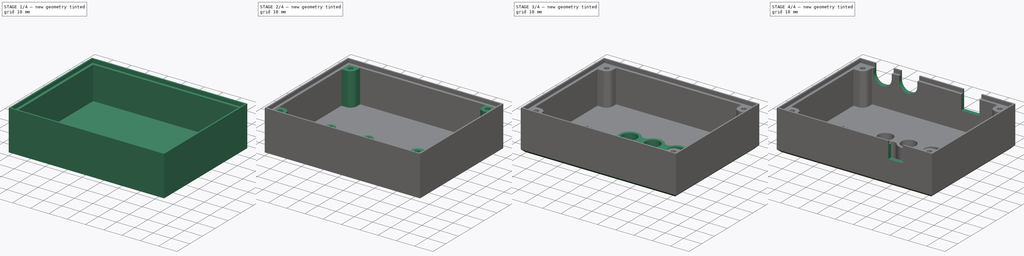
[diagram: build sequence overview — one tinted view per stage of 4, left to right]
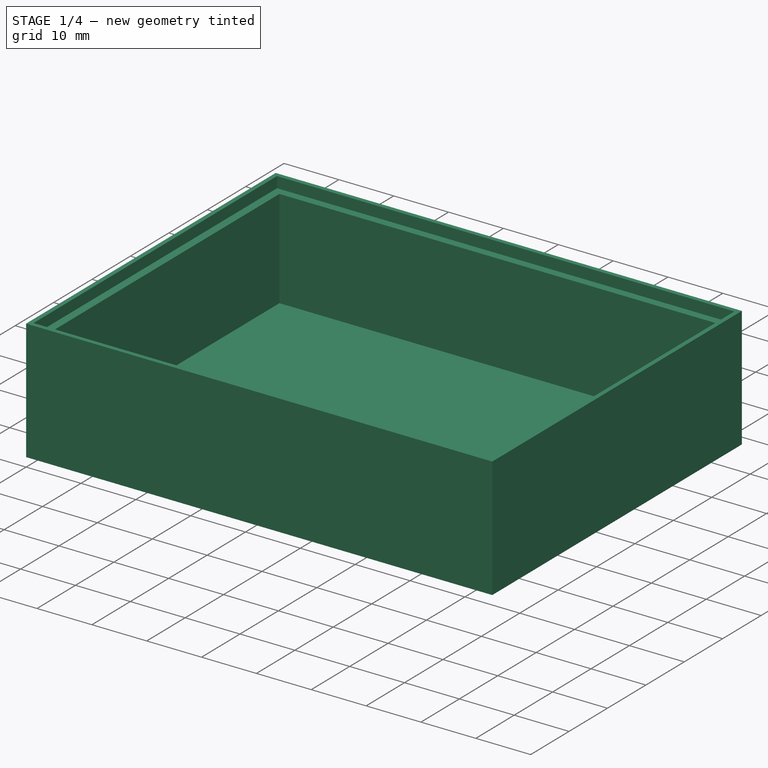
[diagram: stage 1 of 4 — iso view after this stage's code; geometry added in this stage tinted green]
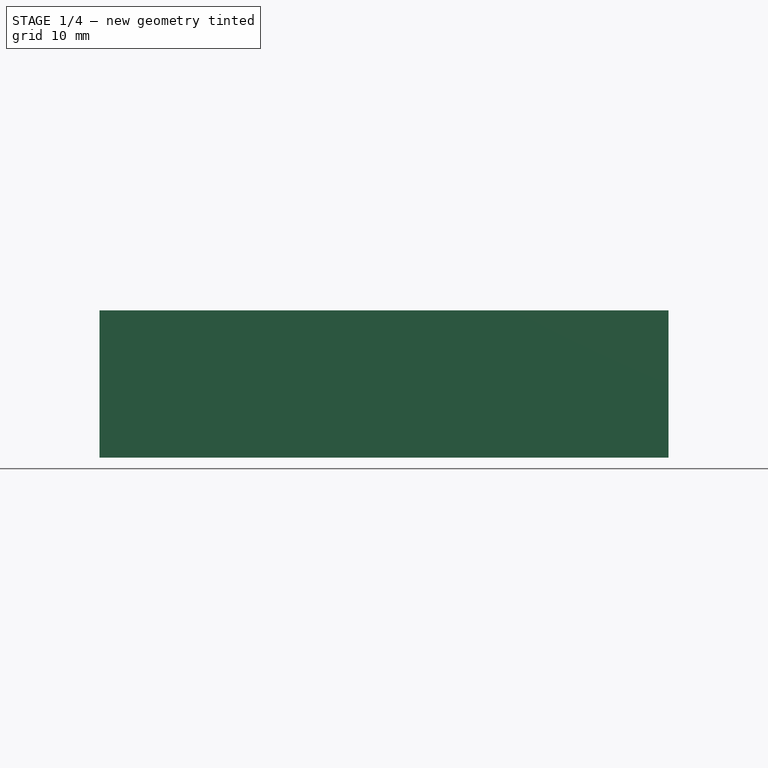
[diagram: stage 1 of 4 — front view after this stage's code; geometry added in this stage tinted green]
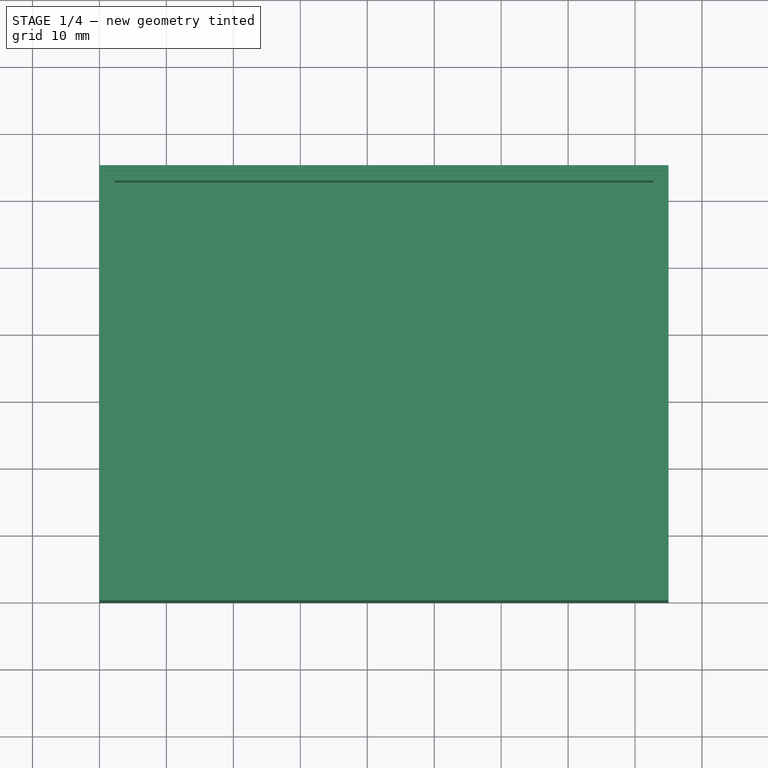
[diagram: stage 1 of 4 — top view after this stage's code; geometry added in this stage tinted green]
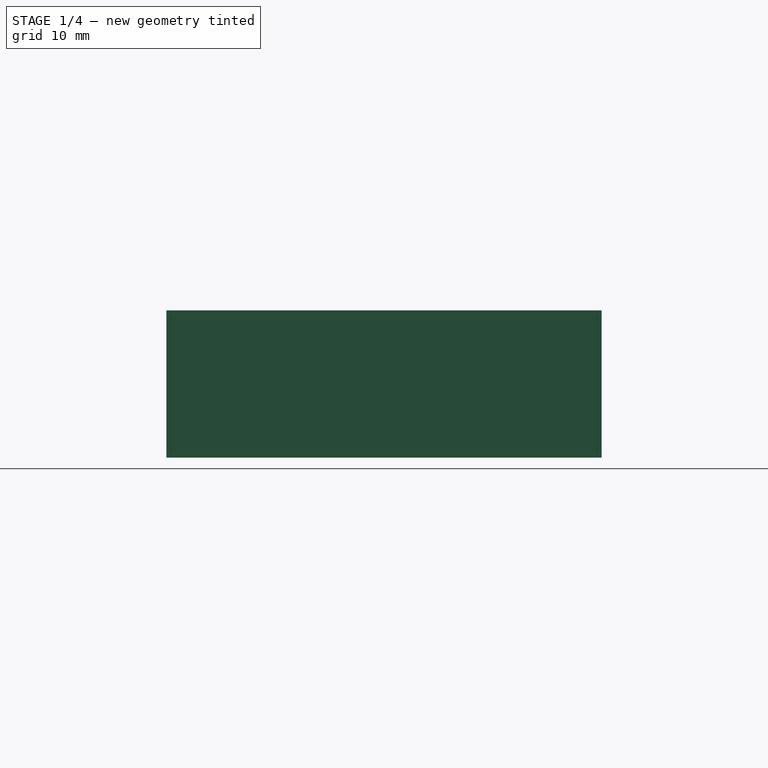
[diagram: stage 1 of 4 — right view after this stage's code; geometry added in this stage tinted green]
FCSTD DOCUMENT  (FreeCAD 0.19R24291 (Git))
Label: smoker_controller_box_top
License: All rights reserved
LicenseURL: http://en.wikipedia.org/wiki/All_rights_reserved
objects: Sketcher::SketchObject×11, PartDesign::Pocket×6, PartDesign::Pad×5, PartDesign::Chamfer×2, PartDesign::Body×1
note: 38 computed .brp shape members not serialized (recipe doc carries the construction recipe); baked Part::Feature solids carry a one-line shape summary decoded from their .brp

FEATURE [Sketcher::SketchObject] Sketch
  FullyConstrained = true
  MapMode = 5
  Support = -> [XY_Plane]
  sketch-geometry (4):
    g0: LineSegment StartX=0 StartY=0 StartZ=0 EndX=85 EndY=0 EndZ=0
    g1: LineSegment StartX=85 StartY=0 StartZ=0 EndX=85 EndY=65 EndZ=0
    g2: LineSegment StartX=85 StartY=65 StartZ=0 EndX=0 EndY=65 EndZ=0
    g3: LineSegment StartX=0 StartY=65 StartZ=0 EndX=0 EndY=0 EndZ=0
  constraints (11):
    c: Coincident(g0,g1)
    c: Coincident(g1,g2)
    c: Coincident(g2,g3)
    c: Coincident(g3,g0)
    c: Horizontal(g0)
    c: Horizontal(g2)
    c: Vertical(g1)
    c: Vertical(g3)
    c: Coincident(g0,g-1)
    c: Distance(g1) = 65
    c: Distance(g2) = 85
FEATURE [PartDesign::Pad] Pad
  Direction = (1,1,1)
  Length = 22
  Length2 = 100
  Profile = -> Sketch
  Type = 0
FEATURE [Sketcher::SketchObject] Sketch001
  ExternalGeometry = -> [Pad]
  FullyConstrained = true
  MapMode = 5
  Placement = pos=(0,0,22) rot=(0,0,1;0rad)
  Support = -> [Pad]
  sketch-geometry (4):
    g0: LineSegment StartX=2.25 StartY=2.25 StartZ=0 EndX=82.75 EndY=2.25 EndZ=0
    g1: LineSegment StartX=82.75 StartY=2.25 StartZ=0 EndX=82.75 EndY=62.75 EndZ=0
    g2: LineSegment StartX=82.75 StartY=62.75 StartZ=0 EndX=2.25 EndY=62.75 EndZ=0
    g3: LineSegment StartX=2.25 StartY=62.75 StartZ=0 EndX=2.25 EndY=2.25 EndZ=0
  constraints (12):
    c: Coincident(g0,g1)
    c: Coincident(g1,g2)
    c: Coincident(g2,g3)
    c: Coincident(g3,g0)
    c: Horizontal(g0)
    c: Horizontal(g2)
    c: Vertical(g1)
    c: Vertical(g3)
    c: Distance(g2) = 80.5
    c: Distance(g3) = 60.5
    c: DistanceY(g0) = 2.25
    c: DistanceX(g0) = 2.25
FEATURE [PartDesign::Pocket] Pocket
  BaseFeature = -> Pad
  Length = 20
  Length2 = 100
  Profile = -> Sketch001
  Type = 0
FEATURE [Sketcher::SketchObject] Sketch002
  ExternalGeometry = -> [Pocket]
  FullyConstrained = true
  MapMode = 5
  Placement = pos=(0,0,22) rot=(0,0,1;0rad)
  Support = -> [Pocket]
  sketch-geometry (4):
    g0: LineSegment StartX=0.8 StartY=0.8 StartZ=0 EndX=84.2 EndY=0.8 EndZ=0
    g1: LineSegment StartX=84.2 StartY=0.8 StartZ=0 EndX=84.2 EndY=64.2 EndZ=0
    g2: LineSegment StartX=84.2 StartY=64.2 StartZ=0 EndX=0.8 EndY=64.2 EndZ=0
    g3: LineSegment StartX=0.8 StartY=64.2 StartZ=0 EndX=0.8 EndY=0.8 EndZ=0
  constraints (12):
    c: Coincident(g0,g1)
    c: Coincident(g1,g2)
    c: Coincident(g2,g3)
    c: Coincident(g3,g0)
    c: Horizontal(g0)
    c: Horizontal(g2)
    c: Vertical(g1)
    c: Vertical(g3)
    c: DistanceX(g-1,g0) = 0.8
    c: DistanceY(g-1,g0) = 0.8
    c: DistanceX(g1,g-4) = 0.8
    c: DistanceY(g1,g-4) = 0.8
FEATURE [PartDesign::Pocket] Pocket001
  BaseFeature = -> Pocket
  Length = 2
  Length2 = 100
  Profile = -> Sketch002
  Type = 0
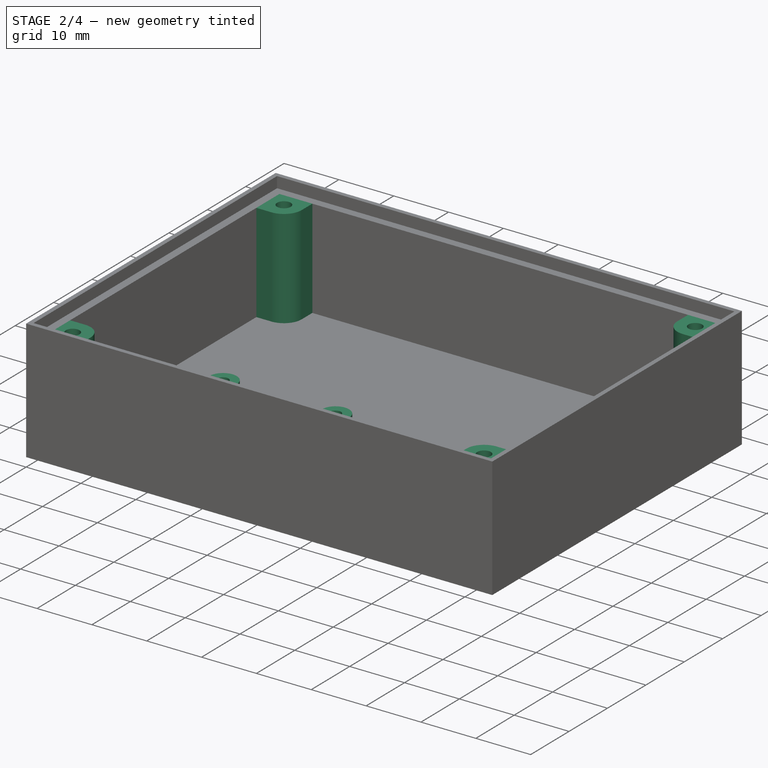
[diagram: stage 2 of 4 — iso view after this stage's code; geometry added in this stage tinted green]
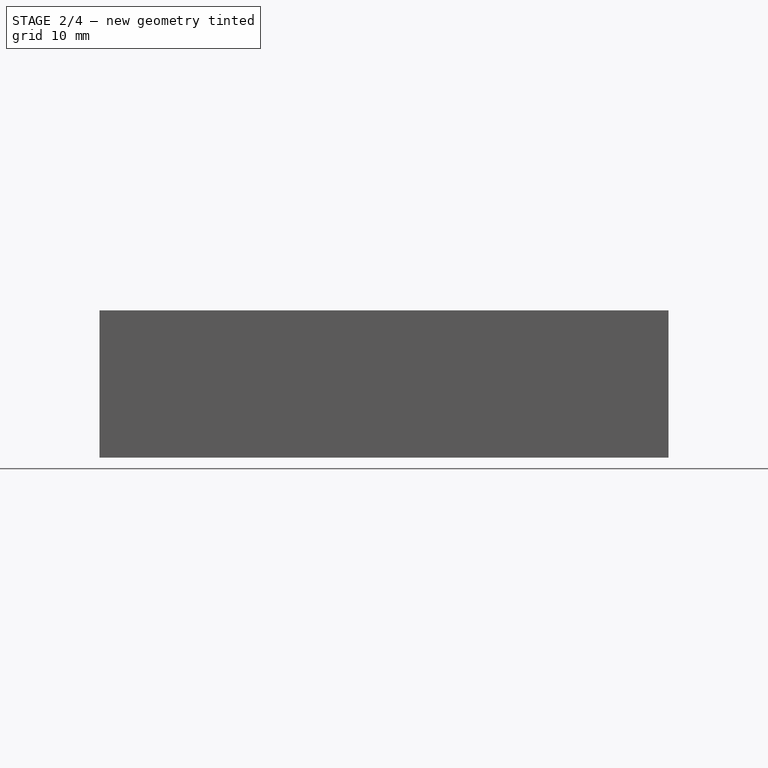
[diagram: stage 2 of 4 — front view after this stage's code; geometry added in this stage tinted green]
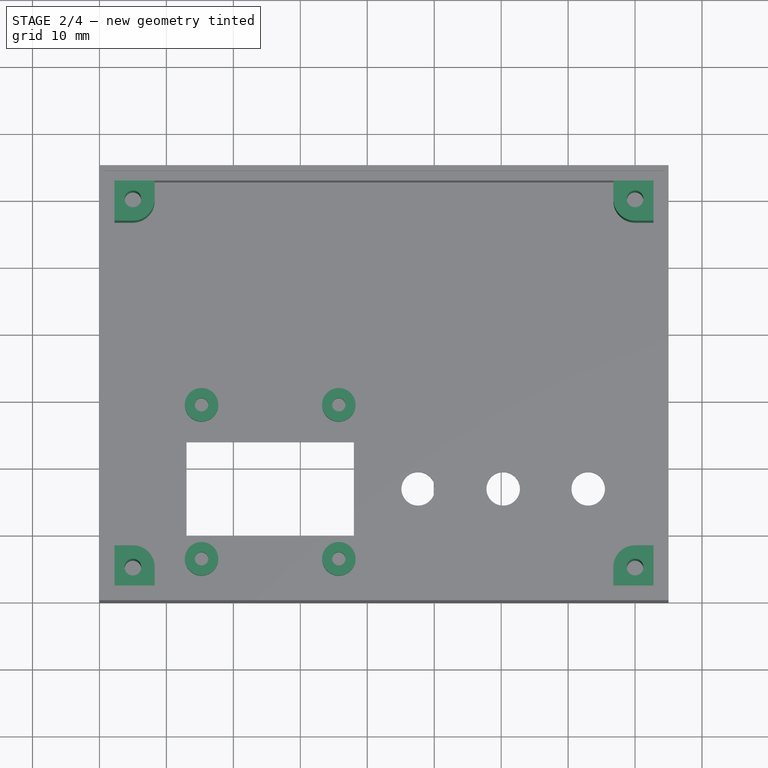
[diagram: stage 2 of 4 — top view after this stage's code; geometry added in this stage tinted green]
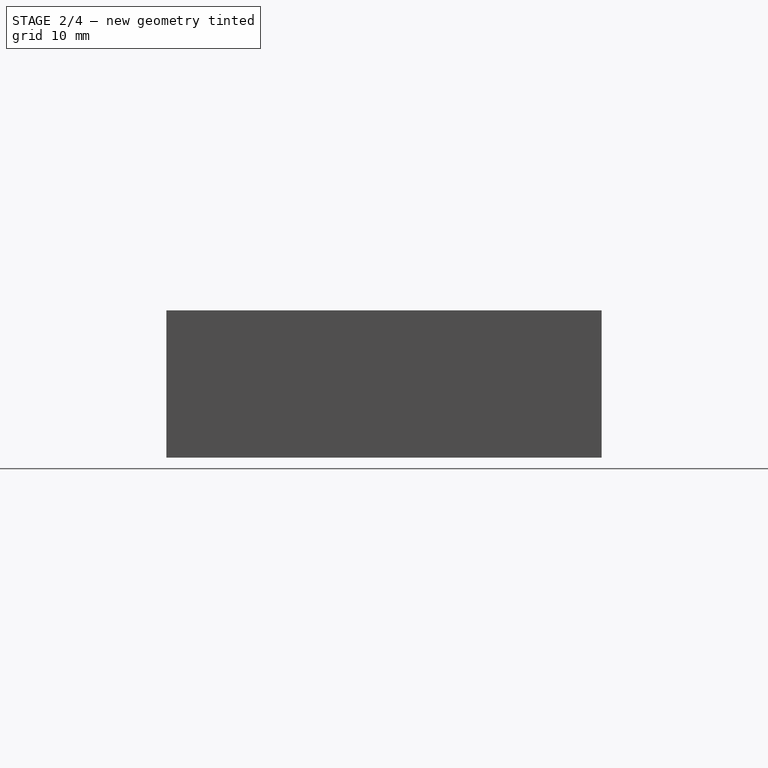
[diagram: stage 2 of 4 — right view after this stage's code; geometry added in this stage tinted green]
FEATURE [Sketcher::SketchObject] Sketch003
  ExternalGeometry = -> [Pocket001]
  FullyConstrained = true
  MapMode = 5
  Placement = pos=(0,0,2) rot=(0,0,1;0rad)
  Support = -> [Pocket001]
  sketch-geometry (24):
    g0: LineSegment StartX=2.25 StartY=2.25 StartZ=0 EndX=8.25 EndY=2.25 EndZ=0
    g1: LineSegment StartX=2.25 StartY=8.25 StartZ=0 EndX=2.25 EndY=2.25 EndZ=0
    g2: LineSegment StartX=82.75 StartY=2.25 StartZ=0 EndX=76.75 EndY=2.25 EndZ=0
    g3: LineSegment StartX=82.75 StartY=8.25 StartZ=0 EndX=82.75 EndY=2.25 EndZ=0
    g4: LineSegment StartX=2.25 StartY=62.75 StartZ=0 EndX=8.25 EndY=62.75 EndZ=0
    g5: LineSegment StartX=8.25 StartY=62.75 StartZ=0 EndX=8.25 EndY=60 EndZ=0
    g6: LineSegment StartX=5 StartY=56.75 StartZ=0 EndX=2.25 EndY=56.75 EndZ=0
    g7: LineSegment StartX=2.25 StartY=56.75 StartZ=0 EndX=2.25 EndY=62.75 EndZ=0
    g8: Circle CenterX=5 CenterY=60 CenterZ=0 NormalX=0 NormalY=0 NormalZ=1 AngleXU=0 Radius=1.25
    g9: Circle CenterX=80 CenterY=60 CenterZ=0 NormalX=0 NormalY=0 NormalZ=1 AngleXU=0 Radius=1.25
    g10: Circle CenterX=80 CenterY=5 CenterZ=0 NormalX=0 NormalY=0 NormalZ=1 AngleXU=0 Radius=1.25
    g11: Circle CenterX=5 CenterY=5 CenterZ=0 NormalX=0 NormalY=0 NormalZ=1 AngleXU=0 Radius=1.25
    g12: ArcOfCircle CenterX=5 CenterY=60 CenterZ=0 NormalX=0 NormalY=0 NormalZ=1 AngleXU=0 Radius=3.25 StartAngle=4.71239 EndAngle=6.28319
    g13: ArcOfCircle CenterX=5 CenterY=5 CenterZ=0 NormalX=0 NormalY=0 NormalZ=1 AngleXU=0 Radius=3.25 StartAngle=0 EndAngle=1.5708
    g14: LineSegment StartX=5 StartY=8.25 StartZ=0 EndX=2.25 EndY=8.25 EndZ=0
    g15: LineSegment StartX=8.25 StartY=5 StartZ=0 EndX=8.25 EndY=2.25 EndZ=0
    g16: ArcOfCircle CenterX=80 CenterY=5 CenterZ=0 NormalX=0 NormalY=0 NormalZ=1 AngleXU=0 Radius=3.25 StartAngle=1.5708 EndAngle=3.14159
    g17: LineSegment StartX=80 StartY=8.25 StartZ=0 EndX=82.75 EndY=8.25 EndZ=0
    g18: LineSegment StartX=76.75 StartY=5 StartZ=0 EndX=76.75 EndY=2.25 EndZ=0
    g19: LineSegment StartX=82.75 StartY=62.75 StartZ=0 EndX=76.75 EndY=62.75 EndZ=0
    g20: LineSegment StartX=82.75 StartY=62.75 StartZ=0 EndX=82.75 EndY=56.75 EndZ=0
    g21: ArcOfCircle CenterX=80 CenterY=60 CenterZ=0 NormalX=0 NormalY=0 NormalZ=1 AngleXU=0 Radius=3.25 StartAngle=3.14159 EndAngle=4.71239
    g22: LineSegment StartX=76.75 StartY=62.75 StartZ=0 EndX=76.75 EndY=60 EndZ=0
    g23: LineSegment StartX=80 StartY=56.75 StartZ=0 EndX=82.75 EndY=56.75 EndZ=0
  constraints (65):
    c: Coincident(g1,g0)
    c: Horizontal(g0)
    c: Vertical(g1)
    c: Coincident(g0,g-6)
    c: Coincident(g3,g2)
    c: Horizontal(g2)
    c: Vertical(g3)
    c: Coincident(g2,g-6)
    c: Coincident(g4,g5)
    c: Coincident(g6,g7)
    c: Coincident(g7,g4)
    c: Horizontal(g4)
    c: Horizontal(g6)
    c: Vertical(g5)
    c: Vertical(g7)
    c: Coincident(g4,g-4)
    c: DistanceX(g-8,g8) = 5
    c: DistanceY(g8,g-8) = 5
    c: DistanceX(g11) = 5
    c: DistanceY(g11) = 5
    c: DistanceY(g10) = 5
    c: DistanceX(g10,g-10) = 5
    c: DistanceX(g9,g-9) = 5
    c: DistanceY(g9,g-9) = 5
    c: Tangent(g6,g12) = 1.5708
    c: Tangent(g5,g12) = 1.5708
    c: Coincident(g12,g8)
    c: Radius(g8) = 1.25
    c: Radius(g9) = 1.25
    c: Equal(g9,g10)
    c: Equal(g9,g11)
    c: Coincident(g13,g11)
    c: Coincident(g14,g1)
    c: Horizontal(g14)
    c: Coincident(g15,g13)
    c: Vertical(g15)
    c: Coincident(g0,g15)
    c: Equal(g3,g2)
    c: Coincident(g16,g10)
    c: Coincident(g17,g16)
    c: Coincident(g17,g3)
    c: Coincident(g18,g16)
    c: Coincident(g18,g2)
    c: Distance(g1) = 6
    c: Tangent(g14,g13) = -1.5708
    c: Tangent(g13,g15) = 1.5708
    c: Tangent(g16,g17) = 1.5708
    c: Tangent(g16,g18) = -1.5708
    c: Horizontal(g17)
    c: Distance(g3) = 6
    c: Coincident(g19,g-5)
    c: PointOnObject(g19,g-4)
    c: Coincident(g20,g19)
    c: PointOnObject(g20,g-5)
    c: Equal(g20,g19)
    c: Distance(g19) = 6
    c: Coincident(g21,g9)
    c: Coincident(g22,g19)
    c: Coincident(g22,g21)
    c: Coincident(g23,g21)
    c: Coincident(g23,g20)
    c: Tangent(g21,g23) = -1.5708
    c: Tangent(g21,g22) = -1.5708
    c: Vertical(g22)
    c: Distance(g7) = 6
FEATURE [PartDesign::Pad] Pad001
  BaseFeature = -> Pocket001
  Direction = (1,1,1)
  Length = 18
  Length2 = 100
  Profile = -> Sketch003
  Type = 0
FEATURE [Sketcher::SketchObject] Sketch004
  ExternalGeometry = -> [Pad001]
  FullyConstrained = true
  MapMode = 5
  Placement = pos=(0,0,0) rot=(1,0,0;3.14159rad)
  Support = -> [Pad001]
  sketch-geometry (7):
    g0: Circle CenterX=73 CenterY=-17 CenterZ=0 NormalX=0 NormalY=0 NormalZ=1 AngleXU=0 Radius=2.5
    g1: Circle CenterX=60.3 CenterY=-17 CenterZ=0 NormalX=0 NormalY=0 NormalZ=1 AngleXU=0 Radius=2.5
    g2: Circle CenterX=47.6 CenterY=-17 CenterZ=0 NormalX=0 NormalY=0 NormalZ=1 AngleXU=0 Radius=2.5
    g3: LineSegment StartX=13 StartY=-10 StartZ=0 EndX=38 EndY=-10 EndZ=0
    g4: LineSegment StartX=38 StartY=-10 StartZ=0 EndX=38 EndY=-24 EndZ=0
    g5: LineSegment StartX=38 StartY=-24 StartZ=0 EndX=13 EndY=-24 EndZ=0
    g6: LineSegment StartX=13 StartY=-24 StartZ=0 EndX=13 EndY=-10 EndZ=0
  constraints (21):
    c: Radius(g2) = 2.5
    c: Equal(g2,g1)
    c: Equal(g2,g0)
    c: DistanceY(g0,g1) = 0
    c: DistanceY(g1,g2) = 0
    c: DistanceY(g0,g-4) = 17
    c: Distance(g0,g-3) = 12
    c: DistanceX(g1,g0) = 12.7
    c: DistanceX(g2,g1) = 12.7
    c: Coincident(g3,g4)
    c: Coincident(g4,g5)
    c: Coincident(g5,g6)
    c: Coincident(g6,g3)
    c: Horizontal(g3)
    c: Horizontal(g5)
    c: Vertical(g4)
    c: Vertical(g6)
    c: DistanceX(g3) = 13
    c: Distance(g3) = 25
    c: Distance(g4) = 14
    c: DistanceY(g3,g-1) = 10
FEATURE [PartDesign::Pocket] Pocket002
  BaseFeature = -> Pad001
  Length = 5
  Length2 = 100
  Profile = -> Sketch004
  Type = 0
FEATURE [Sketcher::SketchObject] Sketch005
  ExternalGeometry = -> [Pocket002]
  FullyConstrained = true
  MapMode = 5
  Placement = pos=(0,0,2) rot=(0,0,1;0rad)
  Support = -> [Pocket002]
  sketch-geometry (8):
    g0: Circle CenterX=15.25 CenterY=6.5 CenterZ=0 NormalX=0 NormalY=0 NormalZ=1 AngleXU=0 Radius=2.5
    g1: Circle CenterX=35.75 CenterY=6.5 CenterZ=0 NormalX=0 NormalY=0 NormalZ=1 AngleXU=0 Radius=2.5
    g2: Circle CenterX=35.75 CenterY=29.5 CenterZ=0 NormalX=0 NormalY=0 NormalZ=1 AngleXU=0 Radius=2.5
    g3: Circle CenterX=15.25 CenterY=29.5 CenterZ=0 NormalX=0 NormalY=0 NormalZ=1 AngleXU=0 Radius=2.5
    g4: Circle CenterX=15.25 CenterY=6.5 CenterZ=0 NormalX=0 NormalY=0 NormalZ=1 AngleXU=0 Radius=1
    g5: Circle CenterX=35.75 CenterY=6.5 CenterZ=0 NormalX=0 NormalY=0 NormalZ=1 AngleXU=0 Radius=1
    g6: Circle CenterX=35.75 CenterY=29.5 CenterZ=0 NormalX=0 NormalY=0 NormalZ=1 AngleXU=0 Radius=1
    g7: Circle CenterX=15.25 CenterY=29.5 CenterZ=0 NormalX=0 NormalY=0 NormalZ=1 AngleXU=0 Radius=1
  constraints (20):
    c: Radius(g3) = 2.5
    c: Equal(g3,g2)
    c: Equal(g3,g1)
    c: Equal(g3,g0)
    c: DistanceX(g3,g2) = 20.5
    c: DistanceX(g0,g3) = 0
    c: DistanceX(g2,g1) = 0
    c: DistanceY(g0,g3) = 23
    c: DistanceY(g2,g3) = 0
    c: DistanceY(g0,g1) = 0
    c: DistanceY(g0,g-5) = 3.5
    c: DistanceX(g-5,g0) = 2.25
    c: Coincident(g4,g0)
    c: Coincident(g5,g1)
    c: Coincident(g6,g2)
    c: Coincident(g7,g3)
    c: Radius(g7) = 1
    c: Equal(g7,g6)
    c: Equal(g7,g5)
    c: Equal(g7,g4)
FEATURE [PartDesign::Pad] Pad002
  BaseFeature = -> Pocket002
  Direction = (1,1,1)
  Length = 3.5
  Length2 = 100
  Profile = -> Sketch005
  Type = 0
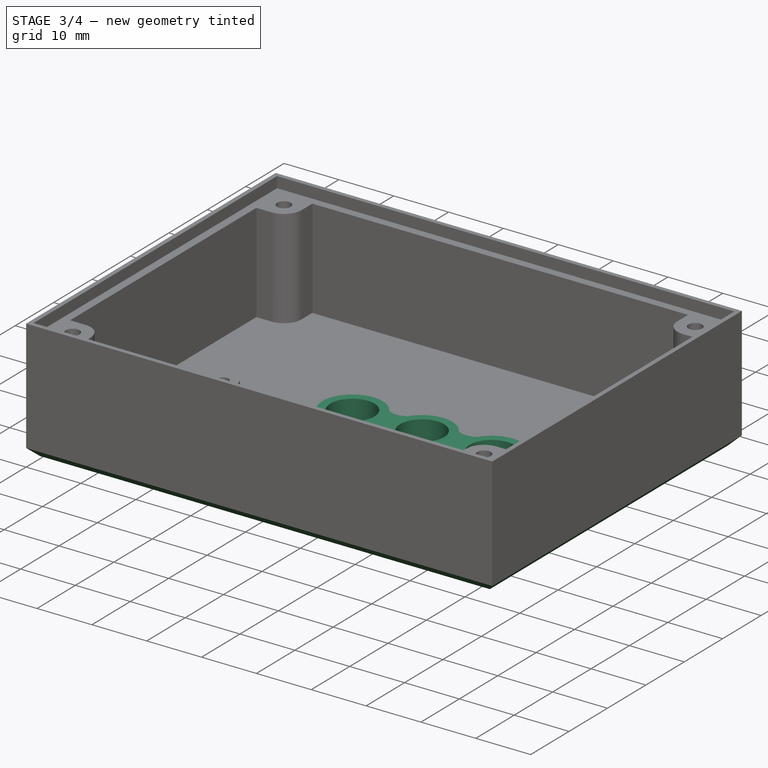
[diagram: stage 3 of 4 — iso view after this stage's code; geometry added in this stage tinted green]
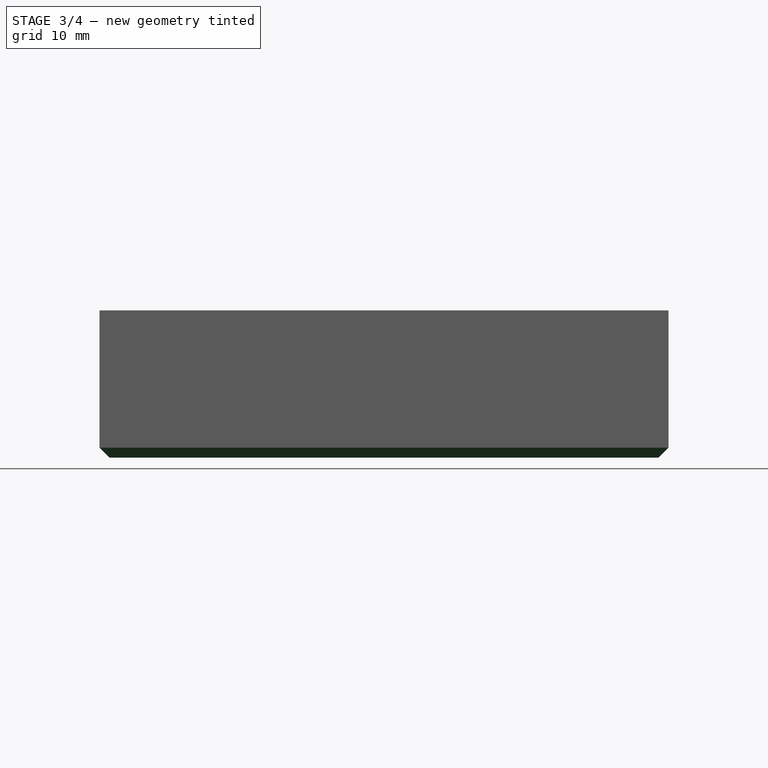
[diagram: stage 3 of 4 — front view after this stage's code; geometry added in this stage tinted green]
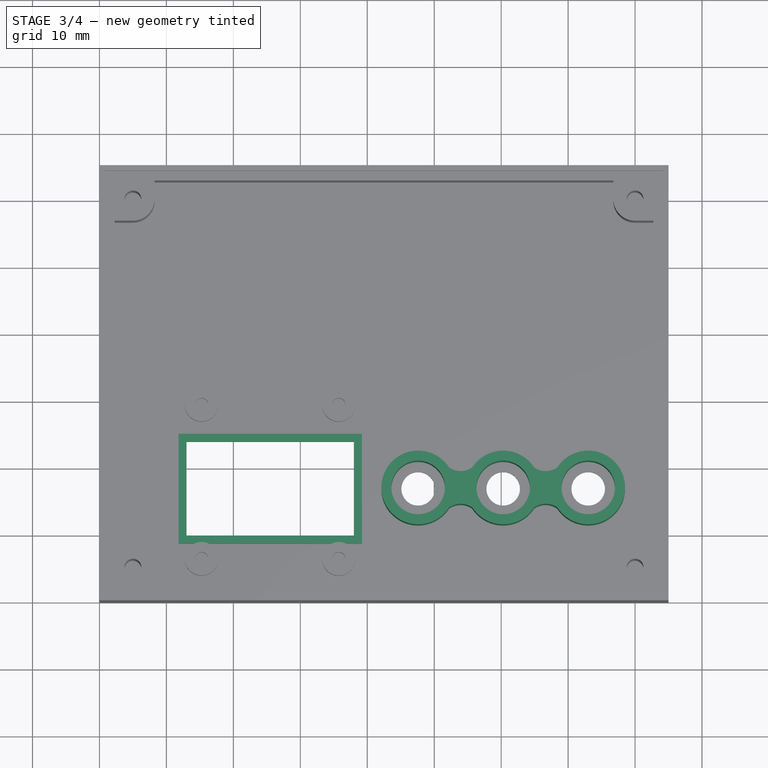
[diagram: stage 3 of 4 — top view after this stage's code; geometry added in this stage tinted green]
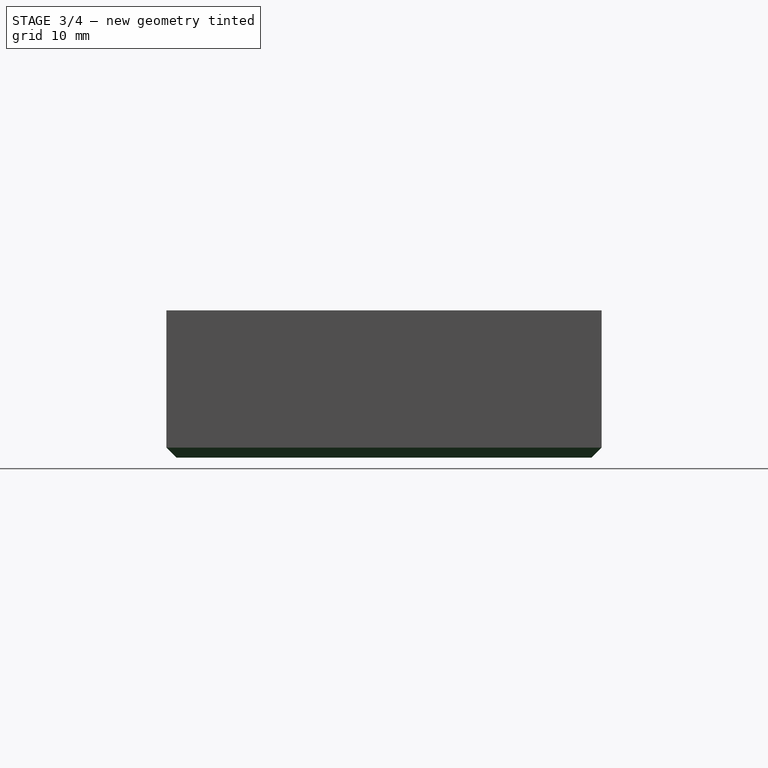
[diagram: stage 3 of 4 — right view after this stage's code; geometry added in this stage tinted green]
FEATURE [Sketcher::SketchObject] Sketch006
  ExternalGeometry = -> [Pad002]
  FullyConstrained = true
  MapMode = 5
  Placement = pos=(0,0,2) rot=(0,0,1;0rad)
  Support = -> [Pad002]
  sketch-geometry (8):
    g0: LineSegment StartX=11.8 StartY=8.8 StartZ=0 EndX=39.2 EndY=8.8 EndZ=0
    g1: LineSegment StartX=39.2 StartY=8.8 StartZ=0 EndX=39.2 EndY=25.2 EndZ=0
    g2: LineSegment StartX=39.2 StartY=25.2 StartZ=0 EndX=11.8 EndY=25.2 EndZ=0
    g3: LineSegment StartX=11.8 StartY=25.2 StartZ=0 EndX=11.8 EndY=8.8 EndZ=0
    g4: LineSegment StartX=13 StartY=10 StartZ=0 EndX=38 EndY=10 EndZ=0
    g5: LineSegment StartX=38 StartY=10 StartZ=0 EndX=38 EndY=24 EndZ=0
    g6: LineSegment StartX=38 StartY=24 StartZ=0 EndX=13 EndY=24 EndZ=0
    g7: LineSegment StartX=13 StartY=24 StartZ=0 EndX=13 EndY=10 EndZ=0
  constraints (22):
    c: Coincident(g0,g1)
    c: Coincident(g1,g2)
    c: Coincident(g2,g3)
    c: Coincident(g3,g0)
    c: Horizontal(g0)
    c: Horizontal(g2)
    c: Vertical(g1)
    c: Vertical(g3)
    c: Coincident(g4,g5)
    c: Coincident(g5,g6)
    c: Coincident(g6,g7)
    c: Coincident(g7,g4)
    c: Horizontal(g4)
    c: Horizontal(g6)
    c: Vertical(g5)
    c: Vertical(g7)
    c: Coincident(g4,g-6)
    c: Coincident(g5,g-5)
    c: DistanceX(g2,g6) = 1.2
    c: DistanceY(g6,g2) = 1.2
    c: DistanceY(g0,g4) = 1.2
    c: DistanceX(g4,g0) = 1.2
FEATURE [PartDesign::Pad] Pad003
  BaseFeature = -> Pad002
  Direction = (1,1,1)
  Length = 1.5
  Length2 = 100
  Profile = -> Sketch006
  Type = 0
FEATURE [PartDesign::Chamfer] Chamfer
  Angle = 45
  Base = -> Pad003 [Edge12,Edge15,Edge14,Edge13]
  BaseFeature = -> Pad003
  ChamferType = 1
  FlipDirection = false
  Size = 2
  Size2 = 1.5
  SupportTransform = false
FEATURE [PartDesign::Chamfer] Chamfer001
  Angle = 45
  Base = -> Chamfer [Edge6,Edge8,Edge7,Edge5]
  BaseFeature = -> Chamfer
  ChamferType = 0
  FlipDirection = false
  Size = 1.5
  Size2 = 1
  SupportTransform = false
FEATURE [Sketcher::SketchObject] Sketch007
  ExternalGeometry = -> [Chamfer001]
  FullyConstrained = true
  MapMode = 5
  Placement = pos=(0,0,2) rot=(0,0,1;0rad)
  Support = -> [Chamfer001]
  sketch-geometry (11):
    g0: Circle CenterX=47.6 CenterY=17 CenterZ=0 NormalX=0 NormalY=0 NormalZ=1 AngleXU=0 Radius=4
    g1: Circle CenterX=60.3 CenterY=17 CenterZ=0 NormalX=0 NormalY=0 NormalZ=1 AngleXU=0 Radius=4
    g2: Circle CenterX=73 CenterY=17 CenterZ=0 NormalX=0 NormalY=0 NormalZ=1 AngleXU=0 Radius=4
    g3: ArcOfCircle CenterX=73 CenterY=17 CenterZ=0 NormalX=0 NormalY=0 NormalZ=1 AngleXU=0 Radius=5.5 StartAngle=3.71852 EndAngle=8.84785
    g4: ArcOfCircle CenterX=60.3 CenterY=17 CenterZ=0 NormalX=0 NormalY=0 NormalZ=1 AngleXU=0 Radius=5.5 StartAngle=3.71852 EndAngle=5.70625
    g5: ArcOfCircle CenterX=47.6 CenterY=17 CenterZ=0 NormalX=0 NormalY=0 NormalZ=1 AngleXU=0 Radius=5.5 StartAngle=0.576931 EndAngle=5.70625
    g6: ArcOfCircle CenterX=53.95 CenterY=22.4437 CenterZ=0 NormalX=0 NormalY=0 NormalZ=1 AngleXU=0 Radius=3 StartAngle=4.09357 EndAngle=5.33121
    g7: ArcOfCircle CenterX=66.65 CenterY=22.4437 CenterZ=0 NormalX=0 NormalY=0 NormalZ=1 AngleXU=0 Radius=3 StartAngle=4.09357 EndAngle=5.33121
    g8: ArcOfCircle CenterX=66.65 CenterY=11.5563 CenterZ=0 NormalX=0 NormalY=0 NormalZ=1 AngleXU=0 Radius=3 StartAngle=0.951974 EndAngle=2.18962
    g9: ArcOfCircle CenterX=53.95 CenterY=11.5563 CenterZ=0 NormalX=0 NormalY=0 NormalZ=1 AngleXU=0 Radius=3 StartAngle=0.951974 EndAngle=2.18962
    g10: ArcOfCircle CenterX=60.3 CenterY=17 CenterZ=0 NormalX=0 NormalY=0 NormalZ=1 AngleXU=0 Radius=5.5 StartAngle=0.576931 EndAngle=2.56466
  constraints (34):
    c: Coincident(g0,g-3)
    c: Coincident(g1,g-4)
    c: Coincident(g2,g-5)
    c: Coincident(g3,g2)
    c: Coincident(g4,g1)
    c: Coincident(g5,g0)
    c: Radius(g0) = 4
    c: Equal(g0,g1)
    c: Equal(g0,g2)
    c: Radius(g5) = 5.5
    c: Equal(g5,g4)
    c: Equal(g5,g3)
    c: DistanceX(g6,g1) = 6.35
    c: DistanceX(g6,g9) = 0
    c: DistanceX(g7,g8) = 0
    c: DistanceX(g7,g2) = 6.35
    c: DistanceY(g7,g6) = 0
    c: DistanceY(g9,g8) = 0
    c: Radius(g9) = 3
    c: Equal(g9,g6)
    c: Equal(g9,g7)
    c: Equal(g9,g8)
    c: DistanceY(g9,g0) = 3
    c: DistanceY(g0,g6) = 3
    c: Coincident(g5,g6)
    c: Coincident(g5,g9)
    c: Coincident(g4,g9)
    c: Coincident(g10,g6)
    c: Equal(g4,g10)
    c: Coincident(g4,g8)
    c: Coincident(g10,g7)
    c: Coincident(g4,g10)
    c: Coincident(g3,g8)
    c: Coincident(g3,g7)
FEATURE [PartDesign::Pad] Pad004
  BaseFeature = -> Chamfer001
  Direction = (1,1,1)
  Length = 12
  Length2 = 100
  Profile = -> Sketch007
  Type = 0
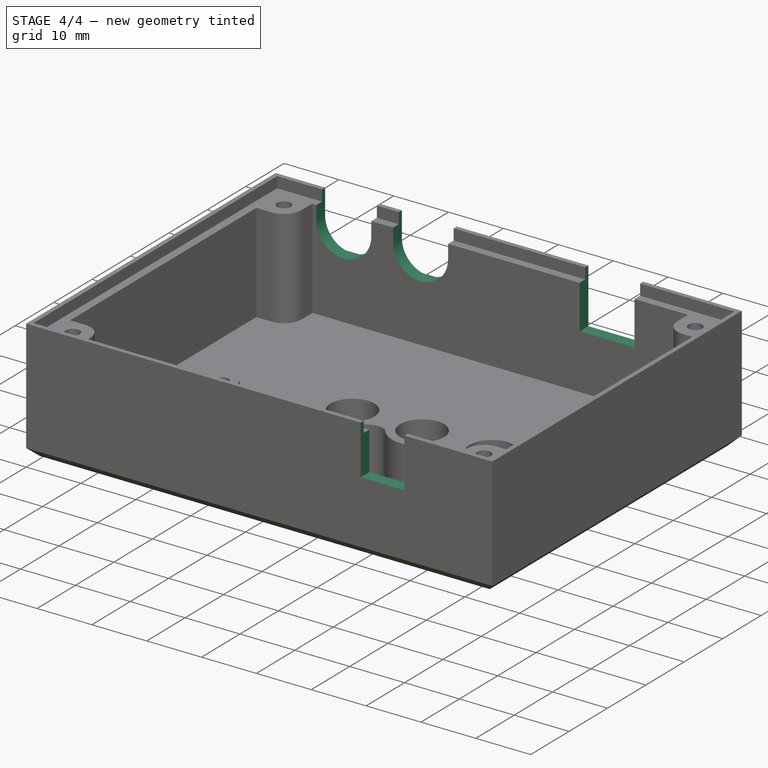
[diagram: stage 4 of 4 — iso view after this stage's code; geometry added in this stage tinted green]
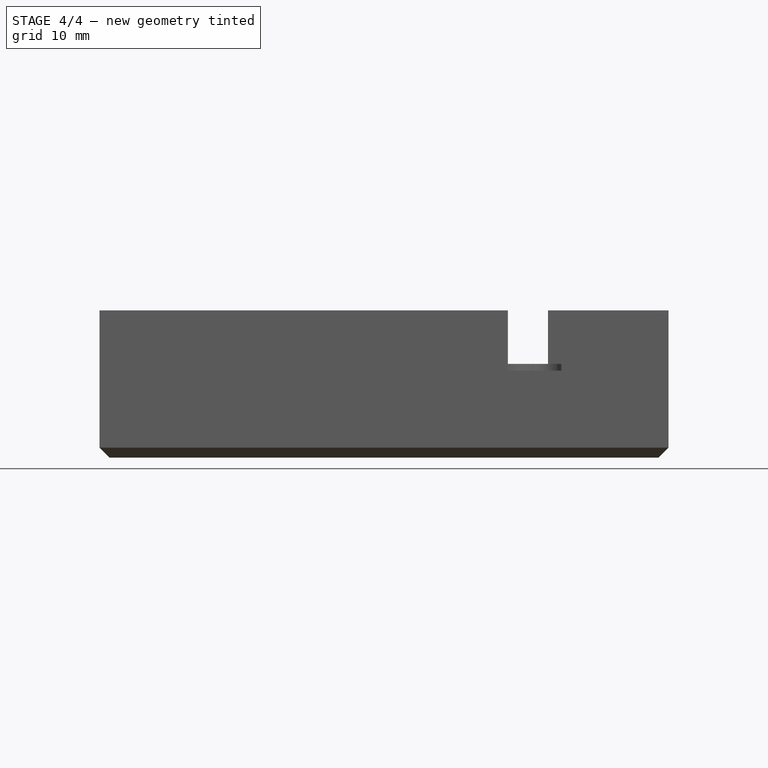
[diagram: stage 4 of 4 — front view after this stage's code; geometry added in this stage tinted green]
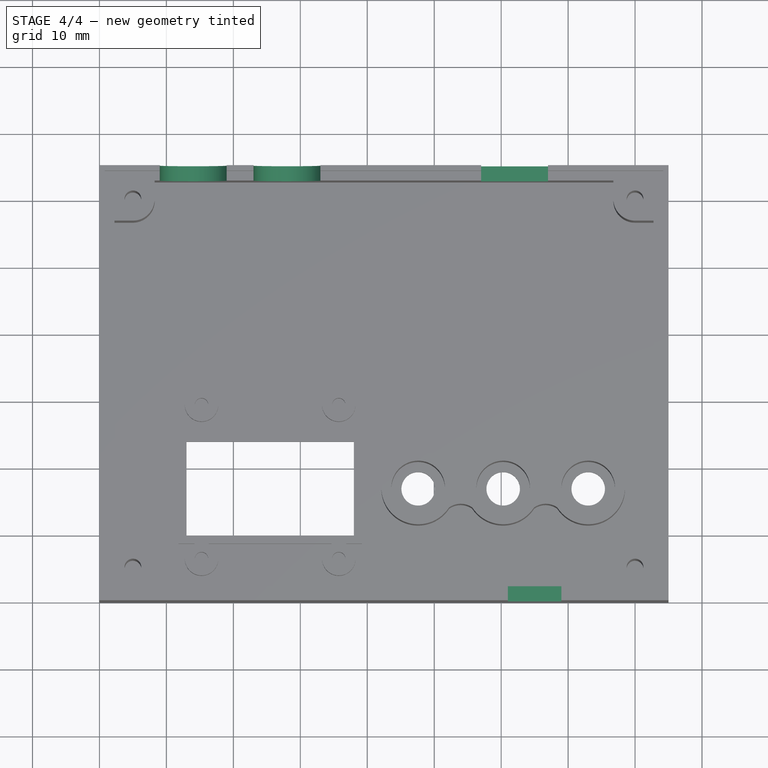
[diagram: stage 4 of 4 — top view after this stage's code; geometry added in this stage tinted green]
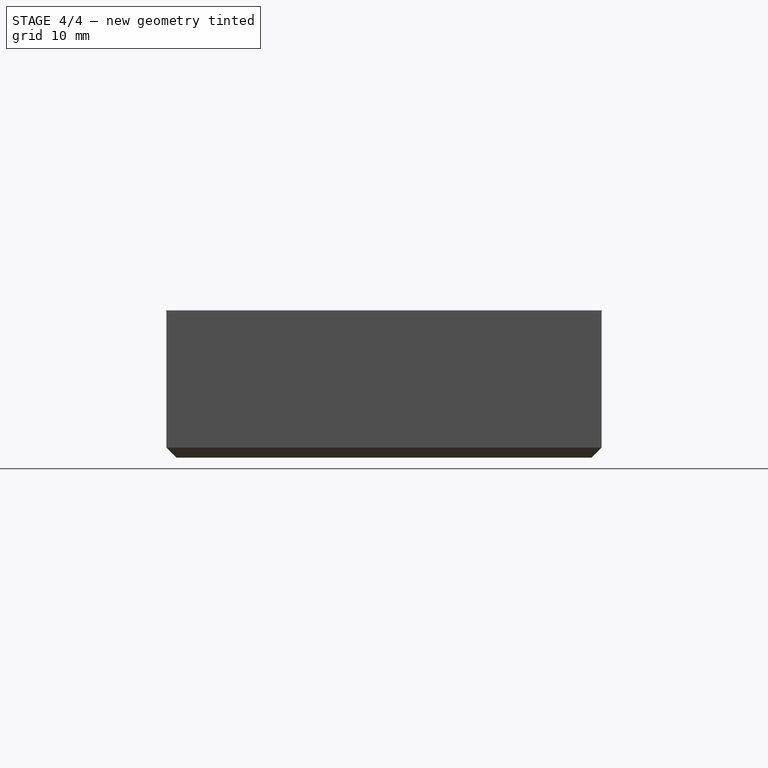
[diagram: stage 4 of 4 — right view after this stage's code; geometry added in this stage tinted green]
FEATURE [Sketcher::SketchObject] Sketch008
  ExternalGeometry = -> [Pad004]
  FullyConstrained = true
  MapMode = 5
  Placement = pos=(0,65,0) rot=(0,0.707107,0.707107;3.14159rad)
  Support = -> [Pad004]
  sketch-geometry (4):
    g0: LineSegment StartX=-67 StartY=12 StartZ=0 EndX=-57 EndY=12 EndZ=0
    g1: LineSegment StartX=-57 StartY=12 StartZ=0 EndX=-57 EndY=22 EndZ=0
    g2: LineSegment StartX=-57 StartY=22 StartZ=0 EndX=-67 EndY=22 EndZ=0
    g3: LineSegment StartX=-67 StartY=22 StartZ=0 EndX=-67 EndY=12 EndZ=0
  constraints (12):
    c: Coincident(g0,g1)
    c: Coincident(g1,g2)
    c: Coincident(g2,g3)
    c: Coincident(g3,g0)
    c: Horizontal(g0)
    c: Horizontal(g2)
    c: Vertical(g1)
    c: Vertical(g3)
    c: Distance(g3) = 10
    c: Distance(g0) = 10
    c: PointOnObject(g2,g-4)
    c: DistanceX(g-4,g2) = 18
FEATURE [PartDesign::Pocket] Pocket003
  BaseFeature = -> Pad004
  Length = 5
  Length2 = 100
  Profile = -> Sketch008
  Type = 0
FEATURE [Sketcher::SketchObject] Sketch009
  ExternalGeometry = -> [Pocket003]
  FullyConstrained = true
  MapMode = 5
  Placement = pos=(0,65,0) rot=(0,0.707107,0.707107;3.14159rad)
  Support = -> [Pocket003]
  sketch-geometry (8):
    g0: ArcOfCircle CenterX=-14 CenterY=17.5 CenterZ=0 NormalX=0 NormalY=0 NormalZ=1 AngleXU=0 Radius=5 StartAngle=3.14159 EndAngle=6.28319
    g1: ArcOfCircle CenterX=-28 CenterY=17.5 CenterZ=0 NormalX=0 NormalY=0 NormalZ=1 AngleXU=0 Radius=5 StartAngle=3.14159 EndAngle=6.28319
    g2: LineSegment StartX=-33 StartY=17.5 StartZ=0 EndX=-33 EndY=22 EndZ=0
    g3: LineSegment StartX=-33 StartY=22 StartZ=0 EndX=-23 EndY=22 EndZ=0
    g4: LineSegment StartX=-23 StartY=22 StartZ=0 EndX=-23 EndY=17.5 EndZ=0
    g5: LineSegment StartX=-19 StartY=17.5 StartZ=0 EndX=-19 EndY=22 EndZ=0
    g6: LineSegment StartX=-19 StartY=22 StartZ=0 EndX=-9 EndY=22 EndZ=0
    g7: LineSegment StartX=-9 StartY=22 StartZ=0 EndX=-9 EndY=17.5 EndZ=0
  constraints (23):
    c: DistanceX(g0) = -14
    c: DistanceX(g1) = -28
    c: Radius(g1) = 5
    c: Equal(g1,g0)
    c: DistanceY(g1,g0) = 0
    c: DistanceY(g0,g-4) = 4.5
    c: Vertical(g2)
    c: Coincident(g3,g2)
    c: Horizontal(g3)
    c: Coincident(g4,g3)
    c: Vertical(g5)
    c: Coincident(g6,g5)
    c: Horizontal(g6)
    c: Coincident(g7,g6)
    c: Vertical(g7)
    c: Coincident(g1,g2)
    c: Tangent(g1,g4) = 1.5708
    c: Tangent(g0,g5) = 1.5708
    c: Tangent(g0,g7) = 1.5708
    c: PointOnObject(g2,g-3)
    c: PointOnObject(g5,g-3)
    c: Vertical(g4)
    c: Tangent(g1,g2) = 1.5708
FEATURE [PartDesign::Pocket] Pocket004
  BaseFeature = -> Pocket003
  Length = 5
  Length2 = 100
  Profile = -> Sketch009
  Type = 0
FEATURE [Sketcher::SketchObject] Sketch010
  ExternalGeometry = -> [Pocket004]
  FullyConstrained = true
  MapMode = 5
  Placement = pos=(0,0,0) rot=(1,0,0;1.5708rad)
  Support = -> [Pocket004]
  sketch-geometry (4):
    g0: LineSegment StartX=69 StartY=22 StartZ=0 EndX=61 EndY=22 EndZ=0
    g1: LineSegment StartX=61 StartY=22 StartZ=0 EndX=61 EndY=13 EndZ=0
    g2: LineSegment StartX=61 StartY=13 StartZ=0 EndX=69 EndY=13 EndZ=0
    g3: LineSegment StartX=69 StartY=13 StartZ=0 EndX=69 EndY=22 EndZ=0
  constraints (12):
    c: Coincident(g0,g1)
    c: Coincident(g1,g2)
    c: Coincident(g2,g3)
    c: Coincident(g3,g0)
    c: Horizontal(g0)
    c: Horizontal(g2)
    c: Vertical(g1)
    c: Vertical(g3)
    c: PointOnObject(g0,g-4)
    c: Distance(g1) = 9
    c: Distance(g0) = 8
    c: DistanceX(g0,g-4) = 16
FEATURE [PartDesign::Pocket] Pocket005
  BaseFeature = -> Pocket004
  Length = 5
  Length2 = 100
  Profile = -> Sketch010
  Type = 0
FEATURE [PartDesign::Body] Body
  Group = -> [Sketch,Pad,Sketch001,Pocket,Sketch002,Pocket001,Sketch003,Pad001,Sketch004,Pocket002,Sketch005,Pad002,Sketch006,Pad003,Chamfer,Chamfer001,Sketch007,Pad004,Sketch008,Pocket003,Sketch009,Pocket004,Sketch010,Pocket005]
  Origin = -> Origin
  Tip = -> Pocket005
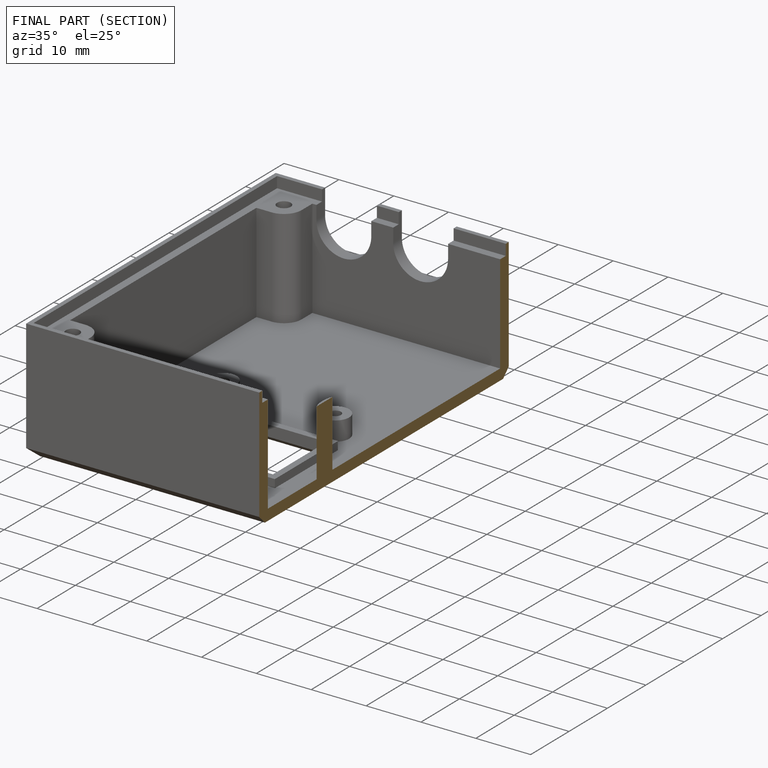
[diagram: finished part — half-section view (interior)]
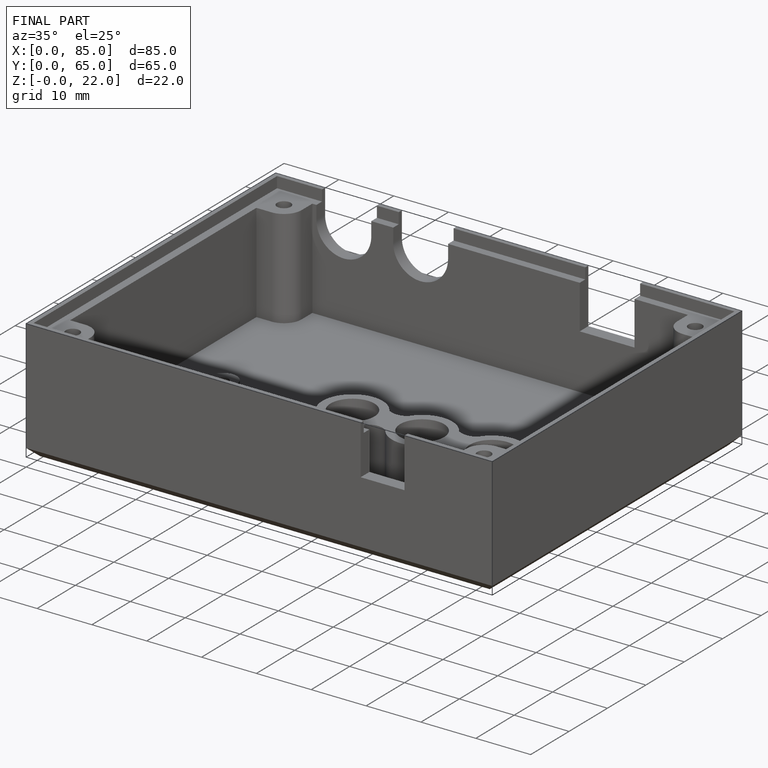
[diagram: finished part — iso view with bounding-box wireframe]
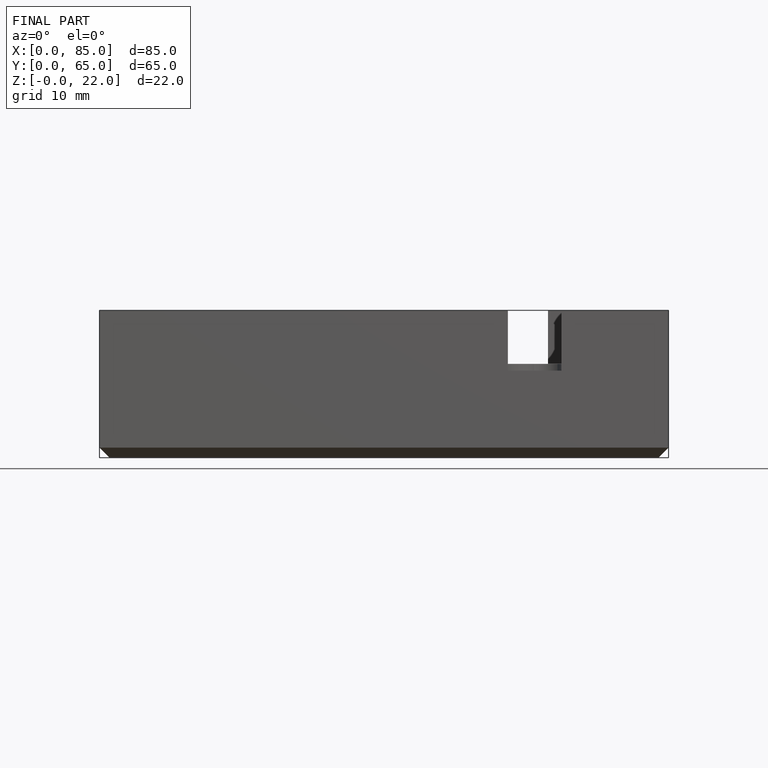
[diagram: finished part — front view with bounding-box wireframe]
